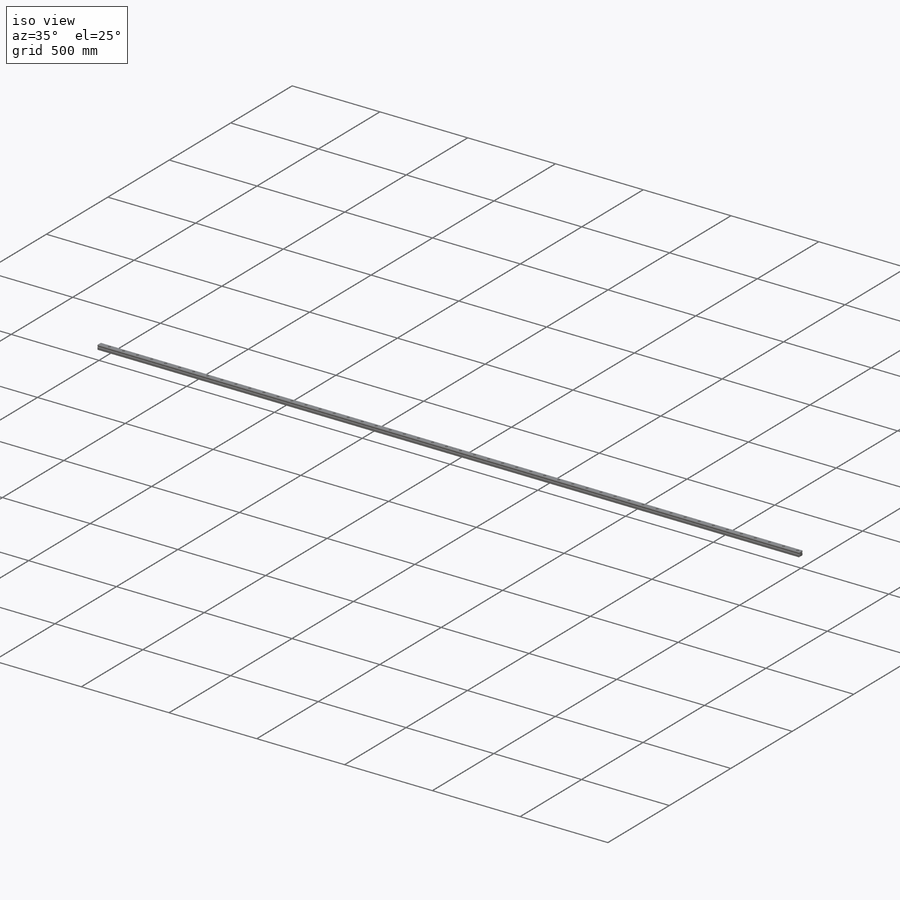
[diagram: iso view]
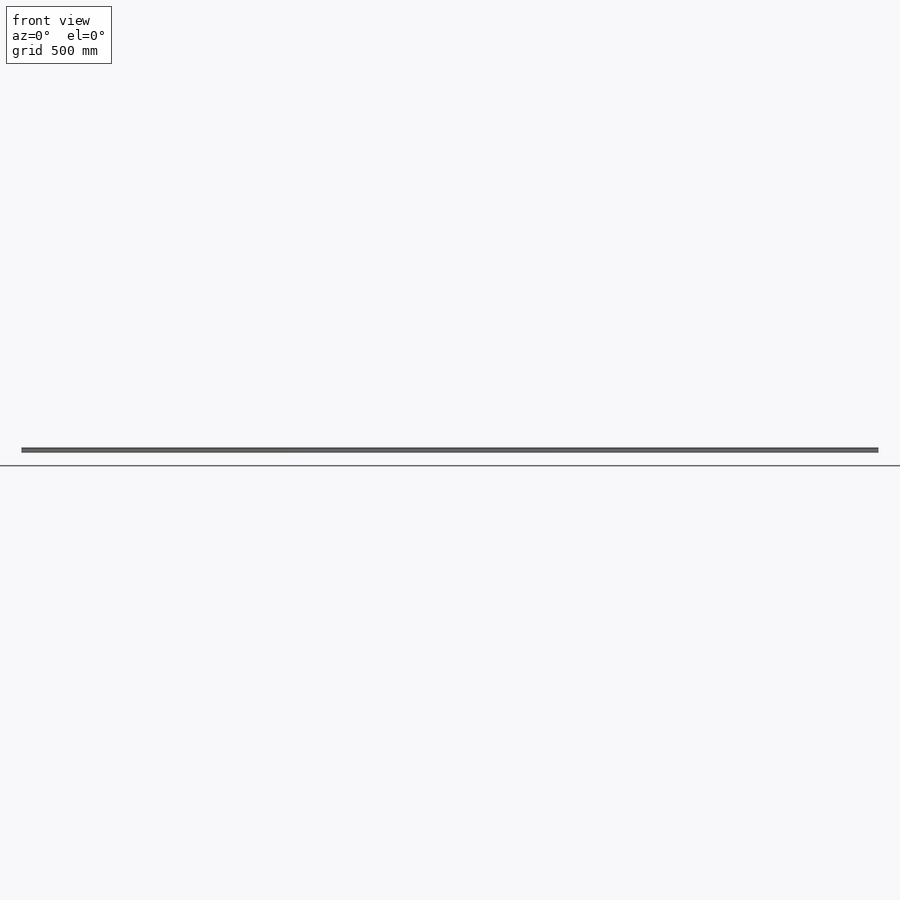
[diagram: front view]
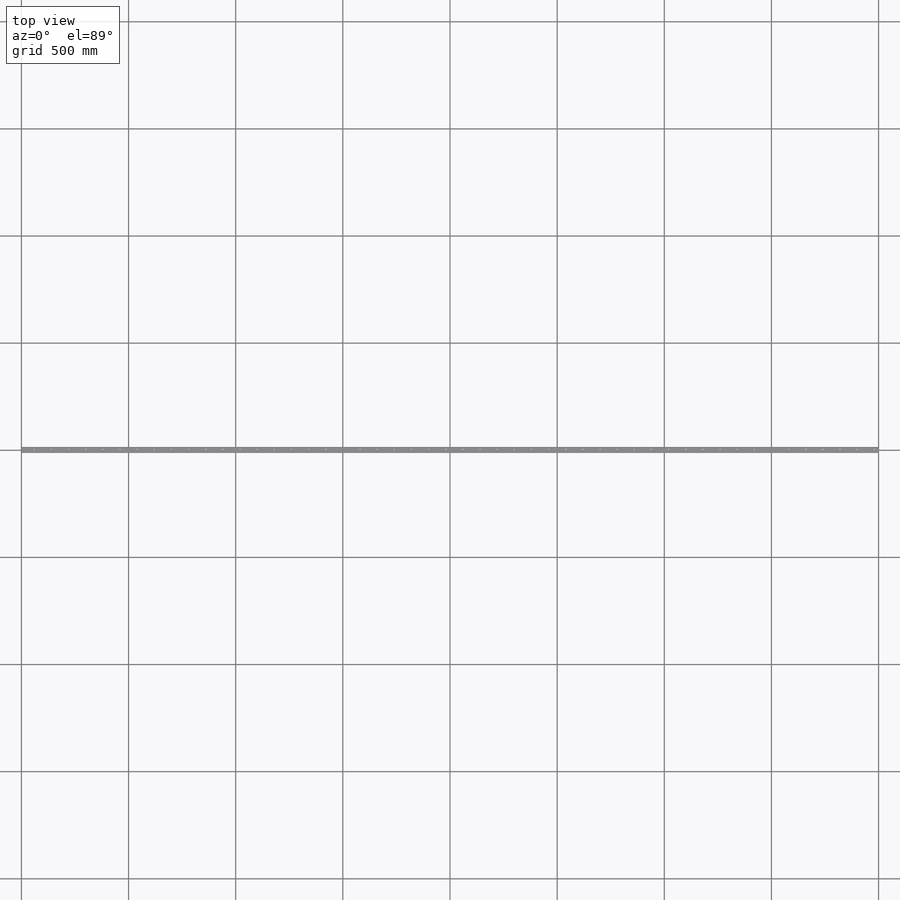
[diagram: top view]
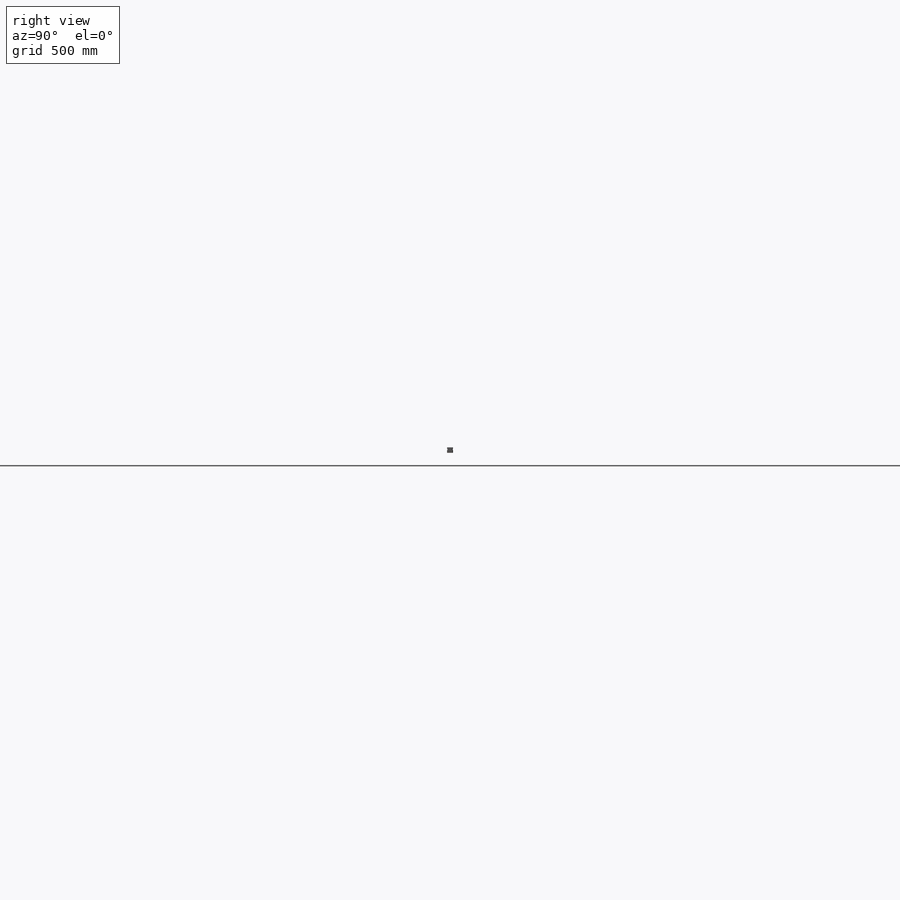
[diagram: right view]
SOLIDWORKS PART (.sldprt)
format: sldprt  version: not decoded by parser v0  size: 409,088 bytes
history: native  units: mm
features: sketch x4, cut_extrude x3, material x1, extrude x1, chamfer x1, pattern_linear x1 (+11 scaffold rows collapsed)
feature tree (22):
  scaffold x11  (default folders/planes/origin — collapsed)
  material  "Material <not specified>"
  sketch  "Sketch1"  dims[D1=14.0mm D2=28.0mm D4=2.0mm D5=2.0mm D6=4.0mm D7=2.0mm D8=4.0mm D9=2.0mm D10=12.0mm D3=26.0mm]
  extrude  "Boss-Extrude1"  Depth=4000mm
  chamfer  "Chamfer1"  Distance=2mm Angle=45deg
  sketch  "Sketch2"  dims[D2=14.0mm D1=20.0mm]
  cut_extrude  "Cut-Extrude1"  Depth=12mm
  sketch  "Sketch3"  dims[D1=9.0mm]
  cut_extrude  "Cut-Extrude2"  [1 undecoded]
  pattern_linear  "LPattern1"  Count1=50 Count2=1 Spacing1=80mm Spacing2=10mm
  sketch  "Sketch4"
  cut_extrude  "Cut-Extrude3"  Depth=2mm
decode coverage: 8 of 10 modeling features carry decoded parameters
note: 1 parameter value undecoded
note: suppression state not decoded; provenance and decode notes live in map.json
